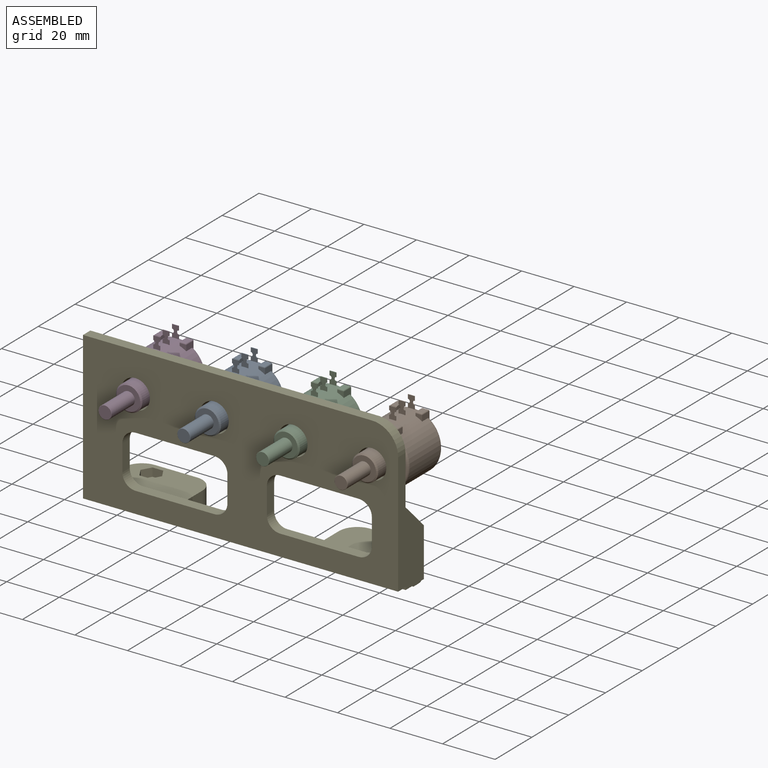
[diagram: assembled view]
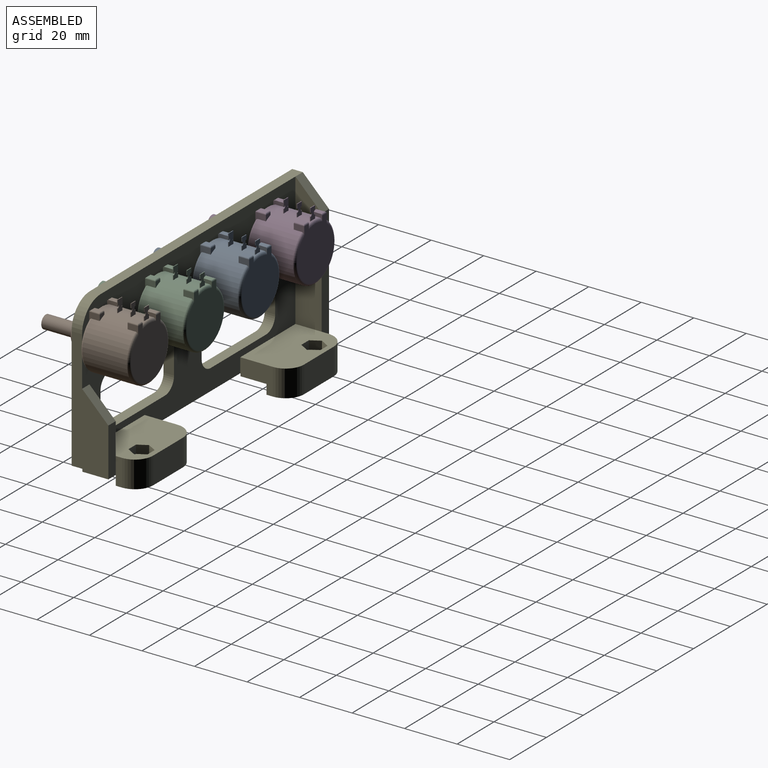
[diagram: assembled view, second angle]
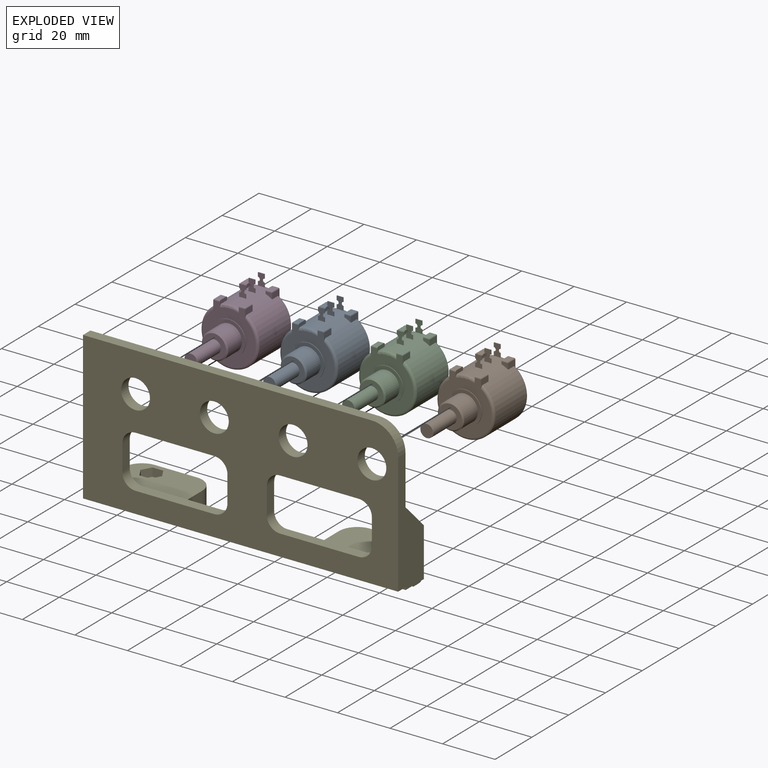
[diagram: exploded view]
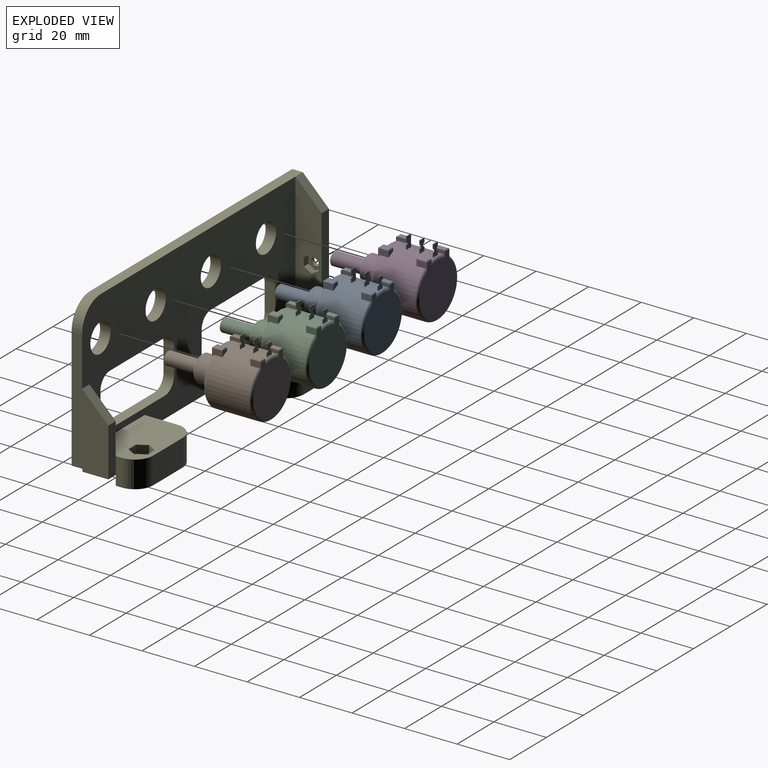
[diagram: exploded view, second angle]
ASSEMBLY  parts=5 mates=4
PART A: 70 faces, bbox 23.8x39.5x27.4 mm
  f0: plane 1.59x0.25mm, normal (1,0,0), area 0.4mm2, adj f6,f40,f41,f68
  f1: plane 1.54x0.25mm, normal (-1,0,0), area 0.4mm2, adj f6,f40,f41,f69
  f2: plane 1.59x0.25mm, normal (1,0,0), area 0.4mm2, adj f6,f45,f46,f66
  f3: plane 1.54x0.25mm, normal (-1,0,0), area 0.4mm2, adj f6,f45,f46,f67
  f4: plane 1.59x0.25mm, normal (1,0,0), area 0.4mm2, adj f6,f50,f51,f64
  f5: plane 1.54x0.25mm, normal (-1,0,0), area 0.4mm2, adj f6,f50,f51,f65
  f6: cylinder r=11mm len=22mm, axis (0,1,0), area 1111.8mm2, adj f0,f1,f2,f3,f4,f5,f7,f8
  f7: torus R=10mm, axis (0,-1,0), area 84.6mm2, adj f6,f9,f30,f34
  f8: torus R=10mm, axis (0,-1,0), area 84.6mm2, adj f6,f10,f22,f26
  f9: plane 21.28x20mm, normal (0,-1,0), area 200.3mm2, adj f7,f11,f20,f30,f31,f34,f35,f53
  f10: plane 21.29x20mm, normal (0,1,0), area 327.1mm2, adj f8,f19,f22,f23,f26,f27,f59,f62
  f11: cylinder r=6.35mm len=12.7mm, axis (0,1,0), area 10mm2, adj f9,f12
  f12: plane 12.7x12.7mm, normal (0,-1,0), area 48.1mm2, adj f11,f13
  f13: cylinder r=5mm len=10mm, axis (0,1,0), area 233.1mm2, adj f12,f17
  f14: plane 9x9mm, normal (0,-1,0), area 44mm2, adj f15,f17
  f15: cylinder r=2.5mm len=12.6mm, axis (0,1,0), area 197.9mm2, adj f14,f18
  f16: plane 4.8x4.8mm, normal (0,-1,0), area 18.1mm2, adj f18
  f17: cone r=4.5mm half-angle=45deg, axis (0,1,0), area 21.1mm2, adj f13,f14
  f18: cone r=2.4mm half-angle=45deg, axis (0,1,0), area 2.2mm2, adj f15,f16
  f19: torus R=10mm, axis (0,-1,0), area 11.5mm2, adj f6,f10,f23,f27,f41
  f20: torus R=10mm, axis (0,-1,0), area 11.5mm2, adj f6,f9,f31,f35
  f21: plane 3x2mm, normal (0,0,1), area 6mm2, adj f23,f58,f59,f60
  f22: plane 4x3.37mm, normal (-1,0,0), area 8.8mm2, adj f6,f8,f10,f24,f60
  f23: plane 4x2.46mm, normal (1,0,0), area 5.7mm2, adj f6,f10,f19,f21,f24,f58,f59
  f24: plane 2.5x2.14mm, normal (0,-1,0), area 3.6mm2, adj f6,f22,f23,f58
  f25: plane 2.5x2.14mm, normal (0,-1,0), area 3.6mm2, adj f6,f26,f27,f61
  f26: plane 4x3.37mm, normal (1,0,0), area 8.8mm2, adj f6,f8,f10,f25,f63
  f27: plane 4x2.46mm, normal (-1,0,0), area 5.7mm2, adj f6,f10,f19,f25,f28,f61,f62
  f28: plane 3x2mm, normal (0,0,1), area 6mm2, adj f27,f61,f62,f63
  f29: plane 3x2mm, normal (0,0,1), area 6mm2, adj f31,f52,f53,f54
  f30: plane 4x3.35mm, normal (-1,0,0), area 8.7mm2, adj f6,f7,f9,f32,f54
  f31: plane 4x2.45mm, normal (1,0,0), area 5.6mm2, adj f6,f9,f20,f29,f32,f52,f53
  f32: plane 2.5x2.12mm, normal (0,1,0), area 3.6mm2, adj f6,f30,f31,f52
  f33: plane 2.5x2.12mm, normal (0,1,0), area 3.6mm2, adj f6,f34,f35,f55
  f34: plane 4x3.35mm, normal (1,0,0), area 8.7mm2, adj f6,f7,f9,f33,f57
  f35: plane 4x2.45mm, normal (-1,0,0), area 5.6mm2, adj f6,f9,f20,f33,f36,f55,f56
  f36: plane 3x2mm, normal (0,0,1), area 6mm2, adj f35,f55,f56,f57
  f37: plane 1.59x0.25mm, normal (1,0,0), area 0.4mm2, adj f39,f40,f41,f68
  f38: plane 1.54x0.25mm, normal (-1,0,0), area 0.4mm2, adj f39,f40,f41,f69
  f39: plane 2.5x0.25mm, normal (0,0,1), area 0.6mm2, adj f37,f38,f40,f41
  f40: plane 4.59x2.5mm, normal (0,-1,0), area 9.7mm2, adj f0,f1,f6,f37,f38,f39,f68,f69
  f41: plane 4.59x2.5mm, normal (0,1,0), area 9.7mm2, adj f0,f1,f19,f37,f38,f39,f68,f69
  f42: plane 1.59x0.25mm, normal (1,0,0), area 0.4mm2, adj f44,f45,f46,f66
  f43: plane 1.54x0.25mm, normal (-1,0,0), area 0.4mm2, adj f44,f45,f46,f67
  f44: plane 2.5x0.25mm, normal (0,0,1), area 0.6mm2, adj f42,f43,f45,f46
  f45: plane 4.59x2.5mm, normal (0,-1,0), area 9.7mm2, adj f2,f3,f6,f42,f43,f44,f66,f67
  f46: plane 4.59x2.5mm, normal (0,1,0), area 9.7mm2, adj f2,f3,f6,f42,f43,f44,f66,f67
  f47: plane 1.59x0.25mm, normal (1,0,0), area 0.4mm2, adj f49,f50,f51,f64
  f48: plane 1.54x0.25mm, normal (-1,0,0), area 0.4mm2, adj f49,f50,f51,f65
  f49: plane 2.5x0.25mm, normal (0,0,1), area 0.6mm2, adj f47,f48,f50,f51
  f50: plane 4.59x2.5mm, normal (0,-1,0), area 9.7mm2, adj f4,f5,f6,f47,f48,f49,f64,f65
  f51: plane 4.59x2.5mm, normal (0,1,0), area 9.7mm2, adj f4,f5,f6,f47,f48,f49,f64,f65
  f52: cylinder r=0.5mm len=2.5mm, axis (1,0,0), area 1.8mm2, adj f29,f31,f32,f54
  f53: cylinder r=0.5mm len=2.5mm, axis (-1,0,0), area 1.8mm2, adj f9,f29,f31,f54
  f54: cylinder r=0.5mm len=4mm, axis (0,-1,0), area 2.9mm2, adj f29,f30,f52,f53
  f55: cylinder r=0.5mm len=2.5mm, axis (1,0,0), area 1.8mm2, adj f33,f35,f36,f57
  f56: cylinder r=0.5mm len=2.5mm, axis (-1,0,0), area 1.8mm2, adj f9,f35,f36,f57
  f57: cylinder r=0.5mm len=4mm, axis (0,-1,0), area 2.9mm2, adj f34,f36,f55,f56
  f58: cylinder r=0.5mm len=2.5mm, axis (1,0,0), area 1.8mm2, adj f21,f23,f24,f60
  f59: cylinder r=0.5mm len=2.5mm, axis (-1,0,0), area 1.8mm2, adj f10,f21,f23,f60
  f60: cylinder r=0.5mm len=4mm, axis (0,1,0), area 2.9mm2, adj f21,f22,f58,f59
  f61: cylinder r=0.5mm len=2.5mm, axis (1,0,0), area 1.8mm2, adj f25,f27,f28,f63
  f62: cylinder r=0.5mm len=2.5mm, axis (-1,0,0), area 1.8mm2, adj f10,f27,f28,f63
  f63: cylinder r=0.5mm len=4mm, axis (0,1,0), area 2.9mm2, adj f26,f28,f61,f62
  f64: cylinder r=0.71mm len=1.41mm, axis (0,-1,0), area 0.6mm2, adj f4,f47,f50,f51
  f65: cylinder r=0.75mm len=1.5mm, axis (0,-1,0), area 0.6mm2, adj f5,f48,f50,f51
  f66: cylinder r=0.71mm len=1.41mm, axis (0,-1,0), area 0.6mm2, adj f2,f42,f45,f46
  f67: cylinder r=0.75mm len=1.5mm, axis (0,-1,0), area 0.6mm2, adj f3,f43,f45,f46
  f68: cylinder r=0.71mm len=1.41mm, axis (0,-1,0), area 0.6mm2, adj f0,f37,f40,f41
  f69: cylinder r=0.75mm len=1.5mm, axis (0,-1,0), area 0.6mm2, adj f1,f38,f40,f41
PART B: same geometry as A
PART C: same geometry as A
PART D: same geometry as A
PART E: 77 faces, bbox 120x23.4x61 mm
  f0: plane 16x10.21mm, normal (0,1,0), area 163.4mm2, adj f55,f56,f73,f75
  f1: plane 30x19.4mm, normal (0,0,1), area 517.3mm2, adj f9,f12,f52,f53,f65,f66,f67,f68
  f2: plane 120x4.1mm, normal (0,0,-1), area 486.8mm2, adj f3,f12,f13,f15,f16,f22,f71,f72
  f3: plane 34x1mm, normal (0,-1,0), area 34mm2, adj f2,f4,f15,f71
  f4: plane 34x9.9mm, normal (0,0,-1), area 336.6mm2, adj f3,f5,f10,f15,f71
  f5: plane 30x3.7mm, normal (0,-1,0), area 111mm2, adj f4,f6,f52,f71
  f6: plane 30x9.4mm, normal (0,0,-1), area 247.1mm2, adj f5,f8,f52,f53,f71,f74,f76
  f7: cylinder r=2.1mm len=7.01mm, axis (0,0,1), area 92.5mm2, adj f55,f57
  f8: cylinder r=2.1mm len=7.01mm, axis (0,0,1), area 92.5mm2, adj f6,f64
  f9: plane 50.74x10mm, normal (1,0,0), area 430.2mm2, adj f1,f10,f12,f42,f43,f44,f45,f46
  f10: plane 47.25x4mm, normal (0,1,0), area 189mm2, adj f4,f9,f15,f50,f52
  f11: cylinder r=1.6mm len=3.2mm, axis (1,0,0), area 15.1mm2, adj f15,f41
  f12: plane 116x56.25mm, normal (0,1,0), area 4125.5mm2, adj f1,f2,f9,f14,f16,f17,f18,f19
  f13: plane 120x56.25mm, normal (0,-1,0), area 4791.3mm2, adj f2,f14,f15,f16,f17,f18,f19,f20
  f14: plane 110x4mm, normal (0,0,1), area 440mm2, adj f12,f13,f15,f40,f50
  f15: plane 57.25x14mm, normal (-1,0,0), area 739.4mm2, adj f2,f3,f4,f10,f11,f13,f14,f50
  f16: plane 47.25x14mm, normal (1,0,0), area 420mm2, adj f2,f12,f13,f21,f22,f23,f40,f49
  f17: cylinder r=5.5mm len=11mm, axis (0,-1,0), area 138.2mm2, adj f12,f13
  f18: cylinder r=5.5mm len=11mm, axis (0,-1,0), area 138.2mm2, adj f12,f13
  f19: cylinder r=5.5mm len=11mm, axis (0,-1,0), area 138.2mm2, adj f12,f13
  f20: cylinder r=5.5mm len=11mm, axis (0,-1,0), area 138.2mm2, adj f12,f13
  f21: plane 18.51x4mm, normal (0,1,0), area 74.1mm2, adj f16,f23,f48,f49,f51
  f22: plane 34x1mm, normal (0,-1,0), area 34mm2, adj f2,f16,f23,f72
  f23: plane 34x9.9mm, normal (0,0,-1), area 336.6mm2, adj f16,f21,f22,f54,f72
  f24: plane 30x4mm, normal (0,0,-1), area 120mm2, adj f12,f13,f32,f35
  f25: plane 10x4mm, normal (-1,0,0), area 40mm2, adj f12,f13,f32,f33
  f26: plane 30x4mm, normal (0,0,1), area 120mm2, adj f12,f13,f33,f34
  f27: plane 10x4mm, normal (1,0,0), area 40mm2, adj f12,f13,f34,f35
  f28: plane 30x4mm, normal (0,0,-1), area 120mm2, adj f12,f13,f36,f39
  f29: plane 10x4mm, normal (-1,0,0), area 40mm2, adj f12,f13,f38,f39
  f30: plane 30x4mm, normal (0,0,1), area 120mm2, adj f12,f13,f37,f38
  f31: plane 10x4mm, normal (1,0,0), area 40mm2, adj f12,f13,f36,f37
  f32: cylinder r=5mm len=5mm, axis (0,1,0), area 31.4mm2, adj f12,f13,f24,f25
  f33: cylinder r=5mm len=5mm, axis (0,-1,0), area 31.4mm2, adj f12,f13,f25,f26
  f34: cylinder r=5mm len=5mm, axis (0,1,0), area 31.4mm2, adj f12,f13,f26,f27
  f35: cylinder r=5mm len=5mm, axis (0,-1,0), area 31.4mm2, adj f12,f13,f24,f27
  f36: cylinder r=5mm len=5mm, axis (0,-1,0), area 31.4mm2, adj f12,f13,f28,f31
  f37: cylinder r=5mm len=5mm, axis (0,1,0), area 31.4mm2, adj f12,f13,f30,f31
  f38: cylinder r=5mm len=5mm, axis (0,-1,0), area 31.4mm2, adj f12,f13,f29,f30
  f39: cylinder r=5mm len=5mm, axis (0,1,0), area 31.4mm2, adj f12,f13,f28,f29
  f40: cylinder r=10mm len=10mm, axis (0,1,0), area 62.8mm2, adj f12,f13,f14,f16
  f41: plane 6.47x5.6mm, normal (1,0,0), area 19.1mm2, adj f11,f42,f43,f44,f45,f46,f47
  f42: plane 2.8x2.5mm, normal (0,0.5,0.87), area 8.1mm2, adj f9,f41,f43,f47
  f43: plane 2.8x2.5mm, normal (0,-0.5,0.87), area 8.1mm2, adj f9,f41,f42,f44
  f44: plane 3.23x2.5mm, normal (0,-1,0), area 8.1mm2, adj f9,f41,f43,f45
  f45: plane 2.8x2.5mm, normal (0,-0.5,-0.87), area 8.1mm2, adj f9,f41,f44,f46
  f46: plane 2.8x2.5mm, normal (0,0.5,-0.87), area 8.1mm2, adj f9,f41,f45,f47
  f47: plane 3.23x2.5mm, normal (0,1,0), area 8.1mm2, adj f9,f41,f42,f46
  f48: plane 22x10mm, normal (-1,0,0), area 170mm2, adj f12,f21,f49,f56
  f49: plane 10x10mm, normal (0,0.71,0.71), area 56.6mm2, adj f12,f16,f21,f48
  f50: plane 10x10mm, normal (0,0.71,0.71), area 56.6mm2, adj f9,f10,f14,f15
  f51: plane 10.21x2.4mm, normal (1,0,0), area 24.5mm2, adj f21,f54,f55,f56,f75
  f52: plane 10.21x2.4mm, normal (-1,0,0), area 24.5mm2, adj f1,f5,f6,f10,f76
  f53: plane 16x10.21mm, normal (0,1,0), area 163.4mm2, adj f1,f6,f74,f76
  f54: plane 30x3.7mm, normal (0,-1,0), area 111mm2, adj f23,f51,f55,f72
  f55: plane 30x9.4mm, normal (0,0,-1), area 247.1mm2, adj f0,f7,f51,f54,f72,f73,f75
  f56: plane 30x19.4mm, normal (0,0,1), area 517.3mm2, adj f0,f12,f48,f51,f58,f59,f60,f61
  f57: plane 8.2x7.1mm, normal (0,0,1), area 29.8mm2, adj f7,f58,f59,f60,f61,f62,f63
  f58: plane 4.1x3.2mm, normal (0,1,0), area 13.1mm2, adj f56,f57,f59,f63
  f59: plane 3.55x3.2mm, normal (-0.87,0.5,0), area 13.1mm2, adj f56,f57,f58,f60
  f60: plane 3.55x3.2mm, normal (-0.87,-0.5,0), area 13.1mm2, adj f56,f57,f59,f61
  f61: plane 4.1x3.2mm, normal (0,-1,0), area 13.1mm2, adj f56,f57,f60,f62
  f62: plane 3.55x3.2mm, normal (0.87,-0.5,0), area 13.1mm2, adj f56,f57,f61,f63
  f63: plane 3.55x3.2mm, normal (0.87,0.5,0), area 13.1mm2, adj f56,f57,f58,f62
  f64: plane 8.2x7.1mm, normal (0,0,1), area 29.8mm2, adj f8,f65,f66,f67,f68,f69,f70
  f65: plane 4.1x3.2mm, normal (0,1,0), area 13.1mm2, adj f1,f64,f66,f70
  f66: plane 3.55x3.2mm, normal (-0.87,0.5,0), area 13.1mm2, adj f1,f64,f65,f67
  f67: plane 3.55x3.2mm, normal (-0.87,-0.5,0), area 13.1mm2, adj f1,f64,f66,f68
  f68: plane 4.1x3.2mm, normal (0,-1,0), area 13.1mm2, adj f1,f64,f67,f69
  f69: plane 3.55x3.2mm, normal (0.87,-0.5,0), area 13.1mm2, adj f1,f64,f68,f70
  f70: plane 3.55x3.2mm, normal (0.87,0.5,0), area 13.1mm2, adj f1,f64,f65,f69
  f71: plane 12.4x10.21mm, normal (1,0,0), area 89.5mm2, adj f1,f2,f3,f4,f5,f6,f12,f74
  f72: plane 12.4x10.21mm, normal (-1,0,0), area 89.5mm2, adj f2,f12,f22,f23,f54,f55,f56,f73
  f73: cylinder r=7mm len=10.21mm, axis (0,0,-1), area 112.3mm2, adj f0,f55,f56,f72
  f74: cylinder r=7mm len=10.21mm, axis (0,0,1), area 112.3mm2, adj f1,f6,f53,f71
  f75: cylinder r=7mm len=10.21mm, axis (0,0,1), area 112.3mm2, adj f0,f51,f55,f56
  f76: cylinder r=7mm len=10.21mm, axis (0,0,-1), area 112.3mm2, adj f1,f6,f52,f53
PLACE A t=(2.64,14.88,10.13)mm
PLACE B t=(62.64,14.63,10.13)mm
PLACE C t=(32.64,14.88,10.13)mm
PLACE D t=(-27.36,14.88,10.13)mm
PLACE E t=(7.64,-3.97,10.13)mm
MATE fastened C.f11 <-> E.f19  axis (0,-1,0) through (32.64,-3.97,10.13)mm
MATE fastened B.f11 <-> E.f20  axis (0,-1,0) through (62.64,-3.97,10.13)mm
MATE fastened A.f13 <-> E.f18  axis (0,1,0) through (2.64,-3.97,10.13)mm
MATE fastened D.f13 <-> E.f17  axis (0,-1,0) through (-27.36,-3.97,10.13)mm
